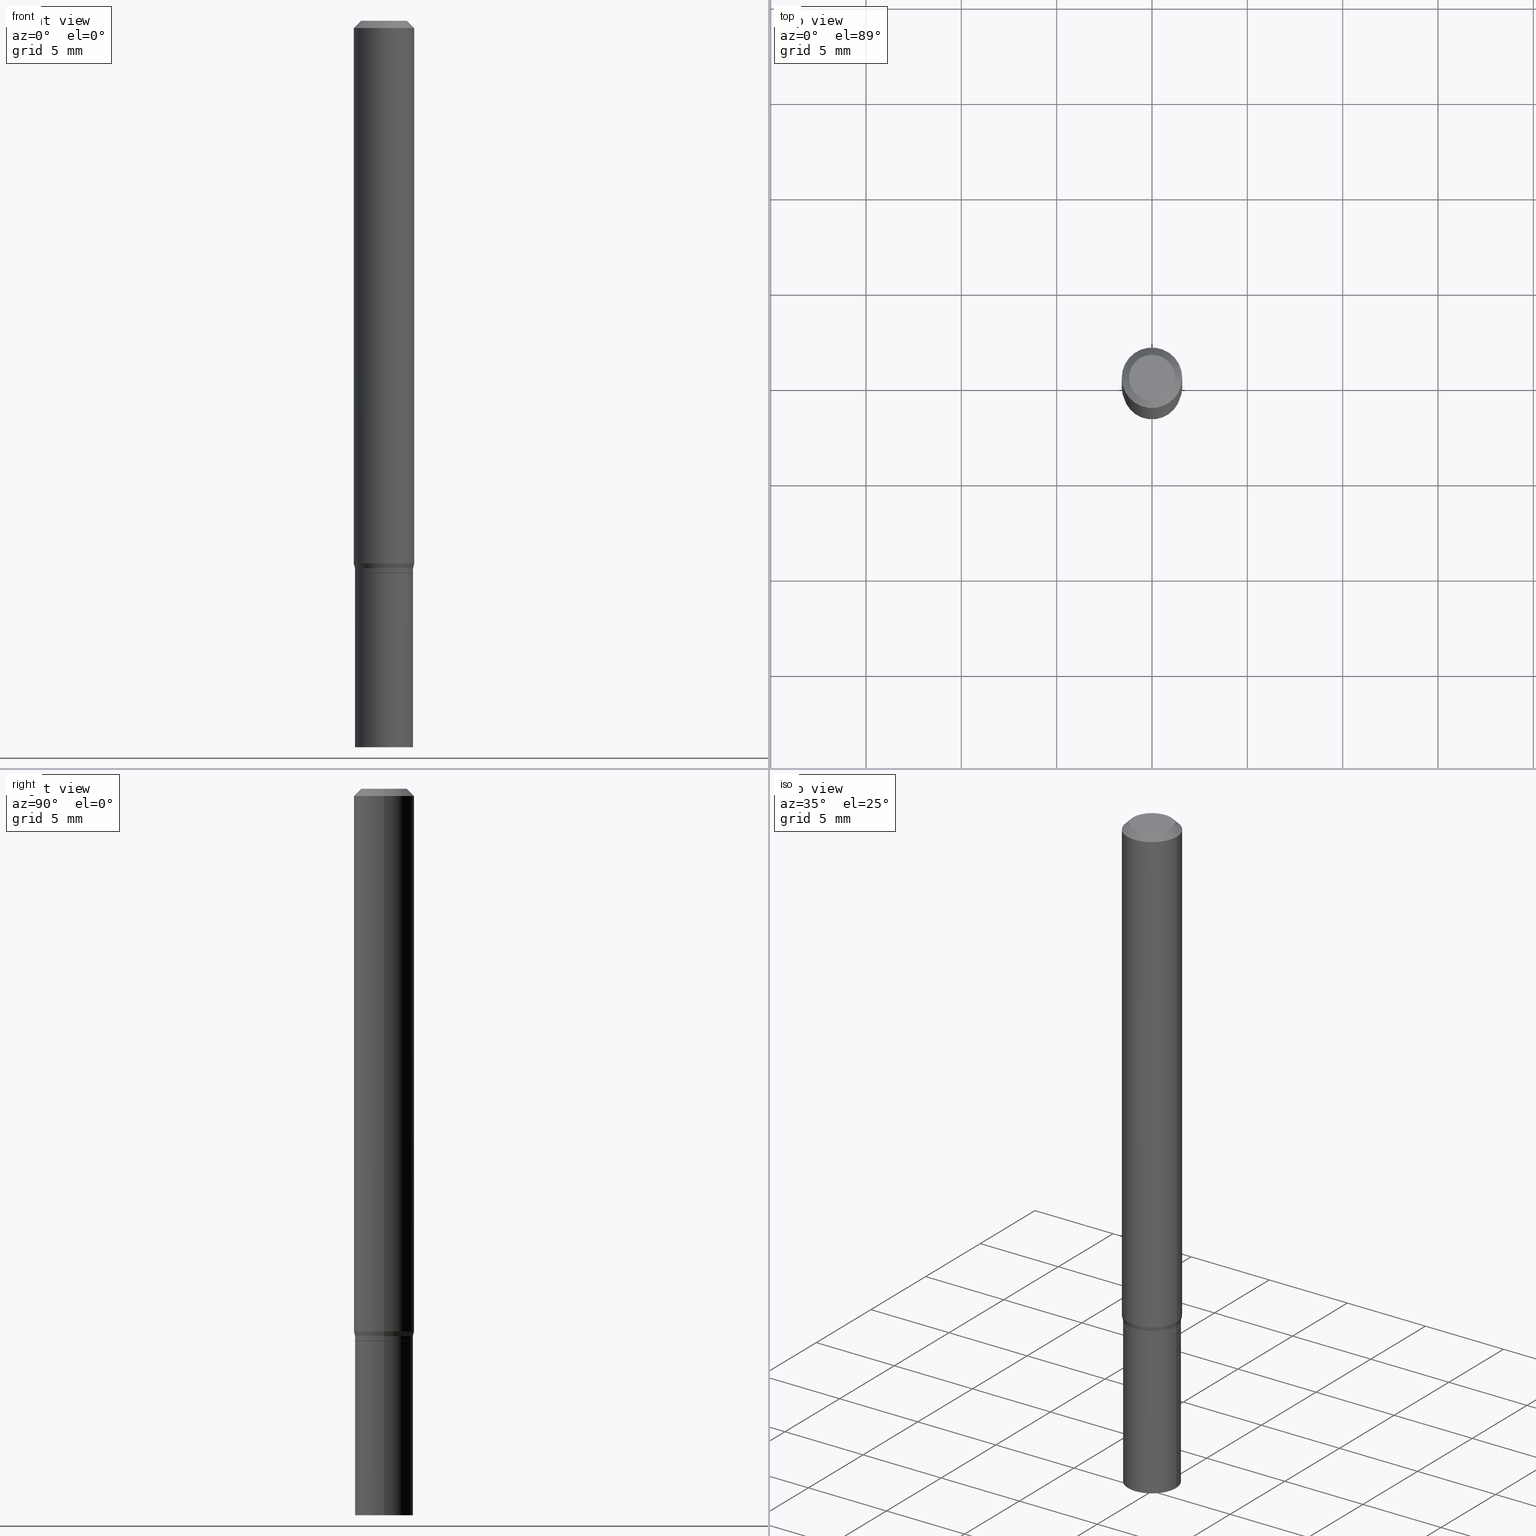
[diagram: canonical four-view strip — front | top / right | iso, engineering-drawing reading convention]
A machine part, canonical four-view strip (front | top / right | iso — engineering-drawing reading convention). The complete STEP part file that produces these views, byte-faithful:
ISO-10303-21;
HEADER;
FILE_DESCRIPTION (( 'STEP AP203' ),
    '1' );
FILE_NAME ('00583.STEP',
    '2024-03-19T21:51:03',
    ( '' ),
    ( '' ),
    'SwSTEP 2.0',
    'SolidWorks 2023',
    '' );
FILE_SCHEMA (( 'CONFIG_CONTROL_DESIGN' ));
ENDSEC;

DATA;
#1 = PLANE ( 'NONE',  #309 ) ;
#2 = PERSON_AND_ORGANIZATION ( #39, #293 ) ;
#3 = CIRCLE ( 'NONE', #179, 0.04749999999999999362 ) ;
#4 = EDGE_CURVE ( 'NONE', #184, #239, #442, .T. ) ;
#5 = FACE_OUTER_BOUND ( 'NONE', #402, .T. ) ;
#6 = EDGE_LOOP ( 'NONE', ( #204, #338, #359, #151 ) ) ;
#7 = DIRECTION ( 'NONE',  ( -2.445468806185136597E-29, 3.491481338843145583E-15, 1.000000000000000000 ) ) ;
#8 = PLANE ( 'NONE',  #301 ) ;
#9 = CLOSED_SHELL ( 'NONE', ( #53, #89, #14, #244, #54, #411, #408, #112, #95, #300, #61, #362 ) ) ;
#10 = LOCAL_TIME ( 17, 51, 3.000000000000000000, #182 ) ;
#11 = CARTESIAN_POINT ( 'NONE',  ( 2.787834439051055989E-29, -3.980288726281186698E-15, -1.140000000000000124 ) ) ;
#12 = CARTESIAN_POINT ( 'NONE',  ( -0.05999999999999999778, -4.182429725816891947E-15, -1.140000000000000124 ) ) ;
#13 = ORIENTED_EDGE ( 'NONE', *, *, #108, .F. ) ;
#14 = ADVANCED_FACE ( 'NONE', ( #240 ), #273, .T. ) ;
#15 = LINE ( 'NONE', #207, #142 ) ;
#16 = ORIENTED_EDGE ( 'NONE', *, *, #4, .T. ) ;
#17 = LENGTH_MEASURE_WITH_UNIT ( LENGTH_MEASURE( 0.02539999999999999897 ), #51 );
#18 = DIRECTION ( 'NONE',  ( 1.000000000000000000, -6.982962677686266711E-15, 0.000000000000000000 ) ) ;
#19 = ORIENTED_EDGE ( 'NONE', *, *, #390, .F. ) ;
#20 = AXIS2_PLACEMENT_3D ( 'NONE', #351, #426, #180 ) ;
#21 = DIRECTION ( 'NONE',  ( -2.445468806185136877E-29, 3.491481338843145188E-15, 1.000000000000000000 ) ) ;
#22 = VERTEX_POINT ( 'NONE', #459 ) ;
#23 = DIRECTION ( 'NONE',  ( -2.445468806185136877E-29, 3.491481338843145188E-15, 1.000000000000000000 ) ) ;
#24 = ORIENTED_EDGE ( 'NONE', *, *, #421, .T. ) ;
#25 = DIRECTION ( 'NONE',  ( -2.445468806185136597E-29, 3.491481338843145583E-15, 1.000000000000000000 ) ) ;
#26 = AXIS2_PLACEMENT_3D ( 'NONE', #64, #461, #404 ) ;
#27 = CARTESIAN_POINT ( 'NONE',  ( 0.05999999999999999778, -5.656199768925894810E-15, -1.500000000000000222 ) ) ;
#28 = EDGE_CURVE ( 'NONE', #401, #166, #288, .T. ) ;
#29 = EDGE_CURVE ( 'NONE', #85, #132, #455, .T. ) ;
#30 = DIRECTION ( 'NONE',  ( -2.445468806185136597E-29, 3.491481338843145583E-15, 1.000000000000000000 ) ) ;
#31 = DATE_AND_TIME ( #392, #330 ) ;
#32 = DIRECTION ( 'NONE',  ( -2.445468806185136597E-29, 3.491481338843145583E-15, 1.000000000000000000 ) ) ;
#33 = PERSON_AND_ORGANIZATION ( #39, #293 ) ;
#34 = CONICAL_SURFACE ( 'NONE', #355, 0.06000000000000020595, 0.2617993877991496854 ) ;
#35 = CARTESIAN_POINT ( 'NONE',  ( -0.05999999999999999778, -4.182429725816891947E-15, -1.500000000000000222 ) ) ;
#36 = CARTESIAN_POINT ( 'NONE',  ( 2.786611704647963188E-29, -3.978542985611764405E-15, -1.139500000000000179 ) ) ;
#37 = CALENDAR_DATE ( 2024, 19, 3 ) ;
#38 = UNCERTAINTY_MEASURE_WITH_UNIT (LENGTH_MEASURE( 1.000000000000000082E-05 ), #236, 'distance_accuracy_value', 'NONE');
#39 = PERSON ( 'UNSPECIFIED', 'UNSPECIFIED', 'UNSPECIFIED', ('UNSPECIFIED'), ('UNSPECIFIED'), ('UNSPECIFIED') ) ;
#40 = EDGE_CURVE ( 'NONE', #132, #184, #70, .T. ) ;
#41 = VECTOR ( 'NONE', #72, 39.37007874015748143 ) ;
#42 = DIRECTION ( 'NONE',  ( -2.445468806185136597E-29, 3.491481338843145583E-15, 1.000000000000000000 ) ) ;
#43 = CARTESIAN_POINT ( 'NONE',  ( 0.05999999999999999778, -4.189777606611760421E-16, 2.925706065477561756E-30 ) ) ;
#44 = DIRECTION ( 'NONE',  ( -2.445468806185136597E-29, 3.491481338843145583E-15, 1.000000000000000000 ) ) ;
#45 = CYLINDRICAL_SURFACE ( 'NONE', #193, 0.06250000000000000000 ) ;
#46 = EDGE_CURVE ( 'NONE', #380, #305, #126, .T. ) ;
#47 = ORIENTED_EDGE ( 'NONE', *, *, #40, .F. ) ;
#48 = CIRCLE ( 'NONE', #86, 0.04749999999999999362 ) ;
#49 = APPROVAL_PERSON_ORGANIZATION ( #33, #211, #221 ) ;
#50 = VERTEX_POINT ( 'NONE', #27 ) ;
#51 =( LENGTH_UNIT ( ) NAMED_UNIT ( * ) SI_UNIT ( $, .METRE. ) );
#52 = EDGE_LOOP ( 'NONE', ( #259, #88 ) ) ;
#53 = ADVANCED_FACE ( 'NONE', ( #276 ), #58, .T. ) ;
#54 = ADVANCED_FACE ( 'NONE', ( #242 ), #381, .T. ) ;
#55 = ORIENTED_EDGE ( 'NONE', *, *, #436, .T. ) ;
#56 = AXIS2_PLACEMENT_3D ( 'NONE', #124, #409, #376 ) ;
#57 = ORIENTED_EDGE ( 'NONE', *, *, #443, .T. ) ;
#58 = CYLINDRICAL_SURFACE ( 'NONE', #192, 0.06000000000000012962 ) ;
#59 = CARTESIAN_POINT ( 'NONE',  ( 2.787834439051055989E-29, -3.980288726281186698E-15, -1.140000000000000124 ) ) ;
#60 = EDGE_CURVE ( 'NONE', #166, #85, #386, .T. ) ;
#61 = ADVANCED_FACE ( 'NONE', ( #216 ), #292, .T. ) ;
#62 = CIRCLE ( 'NONE', #323, 0.06250000000000000000 ) ;
#63 = CIRCLE ( 'NONE', #275, 0.05999999999999999778 ) ;
#64 = CARTESIAN_POINT ( 'NONE',  ( 3.668203209277704895E-29, -5.237222008264718177E-15, -1.500000000000000222 ) ) ;
#65 = CARTESIAN_POINT ( 'NONE',  ( 2.787834439051055989E-29, -3.980288726281186698E-15, -1.140000000000000124 ) ) ;
#66 = DIRECTION ( 'NONE',  ( 0.000000000000000000, 0.000000000000000000, 1.000000000000000000 ) ) ;
#67 = PLANE ( 'NONE',  #20 ) ;
#68 = APPROVAL_DATE_TIME ( #350, #336 ) ;
#69 = CARTESIAN_POINT ( 'NONE',  ( 3.316907271900976096E-16, 0.04749999999999999362, -2.653275547260257586E-16 ) ) ;
#70 = CIRCLE ( 'NONE', #205, 0.06000000000000020595 ) ;
#71 = VECTOR ( 'NONE', #268, 39.37007874015748143 ) ;
#72 = DIRECTION ( 'NONE',  ( -2.445468806185136877E-29, 3.491481338843145188E-15, 1.000000000000000000 ) ) ;
#73 = ORIENTED_EDGE ( 'NONE', *, *, #154, .F. ) ;
#74 = APPROVAL_STATUS ( 'not_yet_approved' ) ;
#75 = MECHANICAL_CONTEXT ( 'NONE', #321, 'mechanical' ) ;
#76 = DIRECTION ( 'NONE',  ( 1.000000000000000000, -6.982962677686270655E-15, 0.000000000000000000 ) ) ;
#77 = DIRECTION ( 'NONE',  ( 1.000000000000000000, -6.982962677686265922E-15, 4.876176775795935793E-29 ) ) ;
#78 = CARTESIAN_POINT ( 'NONE',  ( 0.000000000000000000, 0.000000000000000000, 0.000000000000000000 ) ) ;
#79 = AXIS2_PLACEMENT_3D ( 'NONE', #144, #66, #137 ) ;
#80 = CARTESIAN_POINT ( 'NONE',  ( 0.000000000000000000, 0.000000000000000000, 0.000000000000000000 ) ) ;
#81 = ORIENTED_EDGE ( 'NONE', *, *, #175, .T. ) ;
#82 = ORIENTED_EDGE ( 'NONE', *, *, #154, .T. ) ;
#83 = PRODUCT_DEFINITION ( 'UNKNOWN', '', #394, #224 ) ;
#84 = VERTEX_POINT ( 'NONE', #35 ) ;
#85 = VERTEX_POINT ( 'NONE', #215 ) ;
#86 = AXIS2_PLACEMENT_3D ( 'NONE', #419, #424, #100 ) ;
#87 = AXIS2_PLACEMENT_3D ( 'NONE', #297, #445, #203 ) ;
#88 = ORIENTED_EDGE ( 'NONE', *, *, #277, .F. ) ;
#89 = ADVANCED_FACE ( 'NONE', ( #388 ), #186, .T. ) ;
#90 = ORIENTED_EDGE ( 'NONE', *, *, #46, .T. ) ;
#91 = EDGE_LOOP ( 'NONE', ( #13, #374, #24, #405 ) ) ;
#92 = AXIS2_PLACEMENT_3D ( 'NONE', #385, #32, #420 ) ;
#93 = CIRCLE ( 'NONE', #56, 0.05949999999999999734 ) ;
#94 = CARTESIAN_POINT ( 'NONE',  ( 3.668203209277705088E-31, -5.237222008264718399E-17, -0.01499999999999999944 ) ) ;
#95 = ADVANCED_FACE ( 'NONE', ( #347 ), #283, .F. ) ;
#96 = CARTESIAN_POINT ( 'NONE',  ( 0.000000000000000000, 0.000000000000000000, 0.000000000000000000 ) ) ;
#97 = CARTESIAN_POINT ( 'NONE',  ( -0.06000000000000012962, 4.263256414560610325E-16, -2.951361054152949719E-30 ) ) ;
#98 = VECTOR ( 'NONE', #143, 39.37007874015748143 ) ;
#99 = VECTOR ( 'NONE', #396, 39.37007874015748143 ) ;
#100 = DIRECTION ( 'NONE',  ( 1.000000000000000000, -6.982962677686267499E-15, 4.852736867747366768E-29 ) ) ;
#101 = DATE_AND_TIME ( #37, #265 ) ;
#102 = EDGE_CURVE ( 'NONE', #264, #239, #62, .T. ) ;
#103 = CARTESIAN_POINT ( 'NONE',  ( 0.06250000000000000000, -4.811533449433679005E-16, -0.01499999999999999944 ) ) ;
#104 = PERSON_AND_ORGANIZATION ( #39, #293 ) ;
#105 = LINE ( 'NONE', #43, #41 ) ;
#106 = CARTESIAN_POINT ( 'NONE',  ( -0.06000000000000020595, -3.519048271436693375E-15, -1.130000000000000115 ) ) ;
#107 = VECTOR ( 'NONE', #311, 39.37007874015748143 ) ;
#108 = EDGE_CURVE ( 'NONE', #163, #380, #139, .T. ) ;
#109 = VECTOR ( 'NONE', #441, 39.37007874015748143 ) ;
#110 = EDGE_LOOP ( 'NONE', ( #208, #333, #90, #290 ) ) ;
#111 = COORDINATED_UNIVERSAL_TIME_OFFSET ( 5, 0, .BEHIND. ) ;
#112 = ADVANCED_FACE ( 'NONE', ( #313 ), #307, .T. ) ;
#113 = EDGE_CURVE ( 'NONE', #398, #163, #48, .T. ) ;
#114 = ORIENTED_EDGE ( 'NONE', *, *, #40, .T. ) ;
#115 = FACE_OUTER_BOUND ( 'NONE', #52, .T. ) ;
#116 = ORIENTED_EDGE ( 'NONE', *, *, #4, .F. ) ;
#117 = CARTESIAN_POINT ( 'NONE',  ( 0.000000000000000000, 0.000000000000000000, 0.000000000000000000 ) ) ;
#118 = AXIS2_PLACEMENT_3D ( 'NONE', #331, #44, #291 ) ;
#119 = ORIENTED_EDGE ( 'NONE', *, *, #149, .F. ) ;
#120 = CARTESIAN_POINT ( 'NONE',  ( -0.06250000000000000000, -1.538495874449838155E-15, -0.01499999999999999944 ) ) ;
#121 = CARTESIAN_POINT ( 'NONE',  ( 3.668203209277705088E-31, -5.237222008264718399E-17, -0.01499999999999999944 ) ) ;
#122 = EDGE_LOOP ( 'NONE', ( #228, #371, #82, #302 ) ) ;
#123 = CC_DESIGN_PERSON_AND_ORGANIZATION_ASSIGNMENT ( #2, #433, ( #366 ) ) ;
#124 = CARTESIAN_POINT ( 'NONE',  ( 2.787834439051055989E-29, -3.980288726281186698E-15, -1.140000000000000124 ) ) ;
#125 = EDGE_LOOP ( 'NONE', ( #410, #295, #220, #287 ) ) ;
#126 = CIRCLE ( 'NONE', #462, 0.06250000000000000000 ) ;
#127 = APPROVAL_PERSON_ORGANIZATION ( #141, #336, #423 ) ;
#128 = DIRECTION ( 'NONE',  ( -2.445468806185136597E-29, 3.491481338843145583E-15, 1.000000000000000000 ) ) ;
#129 = ORIENTED_EDGE ( 'NONE', *, *, #28, .F. ) ;
#130 = APPLICATION_PROTOCOL_DEFINITION ( 'international standard', 'config_control_design', 1994, #321 ) ;
#131 = ORIENTED_EDGE ( 'NONE', *, *, #390, .T. ) ;
#132 = VERTEX_POINT ( 'NONE', #247 ) ;
#133 = MANIFOLD_SOLID_BREP ( 'Body-Move/Copy2[1]', #155 ) ;
#134 = CIRCLE ( 'NONE', #26, 0.05999999999999999778 ) ;
#135 = DIRECTION ( 'NONE',  ( -2.445468806185136597E-29, 3.491481338843145583E-15, 1.000000000000000000 ) ) ;
#136 = CARTESIAN_POINT ( 'NONE',  ( 2.763379750989204444E-29, -3.945373912892755049E-15, -1.130000000000000115 ) ) ;
#137 = DIRECTION ( 'NONE',  ( 1.000000000000000000, 0.000000000000000000, 0.000000000000000000 ) ) ;
#138 = ADVANCED_FACE ( 'NONE', ( #391 ), #67, .F. ) ;
#139 = LINE ( 'NONE', #103, #98 ) ;
#140 = EDGE_CURVE ( 'NONE', #50, #84, #346, .T. ) ;
#141 = PERSON_AND_ORGANIZATION ( #39, #293 ) ;
#142 = VECTOR ( 'NONE', #23, 39.37007874015748143 ) ;
#143 = DIRECTION ( 'NONE',  ( 0.7071067811865522357, -7.319954787623271823E-15, -0.7071067811865427988 ) ) ;
#144 = CARTESIAN_POINT ( 'NONE',  ( 0.000000000000000000, 0.000000000000000000, 0.000000000000000000 ) ) ;
#145 = DIRECTION ( 'NONE',  ( -2.445468806185136597E-29, 3.491481338843145583E-15, 1.000000000000000000 ) ) ;
#146 = LINE ( 'NONE', #106, #348 ) ;
#147 = SECURITY_CLASSIFICATION_LEVEL ( 'unclassified' ) ;
#148 = APPLICATION_PROTOCOL_DEFINITION ( 'international standard', 'config_control_design', 1994, #174 ) ;
#149 = EDGE_CURVE ( 'NONE', #85, #22, #447, .T. ) ;
#150 = LINE ( 'NONE', #327, #99 ) ;
#151 = ORIENTED_EDGE ( 'NONE', *, *, #436, .F. ) ;
#152 = CARTESIAN_POINT ( 'NONE',  ( 0.05949999999999999734, -4.395775005603518747E-15, -1.140000000000000124 ) ) ;
#153 = ORIENTED_EDGE ( 'NONE', *, *, #149, .T. ) ;
#154 = EDGE_CURVE ( 'NONE', #50, #449, #105, .T. ) ;
#155 = CLOSED_SHELL ( 'NONE', ( #395, #185, #199, #138 ) ) ;
#156 = CIRCLE ( 'NONE', #418, 0.06000000000000020595 ) ;
#157 = FACE_OUTER_BOUND ( 'NONE', #372, .T. ) ;
#158 = DIRECTION ( 'NONE',  ( 1.000000000000000000, -6.982962677686266711E-15, 4.876176775795935793E-29 ) ) ;
#159 = EDGE_LOOP ( 'NONE', ( #257, #167, #451, #446 ) ) ;
#160 = EDGE_CURVE ( 'NONE', #231, #449, #299, .T. ) ;
#161 = CARTESIAN_POINT ( 'NONE',  ( -0.06250000000000000000, 3.840629472727444916E-16, -0.01499999999999999944 ) ) ;
#162 = CARTESIAN_POINT ( 'NONE',  ( 0.06250000000000000000, -4.349233115872546527E-15, -1.120669872981078674 ) ) ;
#163 = VERTEX_POINT ( 'NONE', #322 ) ;
#164 = EDGE_CURVE ( 'NONE', #22, #85, #260, .T. ) ;
#165 = CARTESIAN_POINT ( 'NONE',  ( 2.763379750989204444E-29, -3.945373912892755049E-15, -1.130000000000000115 ) ) ;
#166 = VERTEX_POINT ( 'NONE', #252 ) ;
#167 = ORIENTED_EDGE ( 'NONE', *, *, #60, .T. ) ;
#168 = DIRECTION ( 'NONE',  ( 1.000000000000000000, -6.982962677686269077E-15, 0.000000000000000000 ) ) ;
#169 = EDGE_LOOP ( 'NONE', ( #131, #415 ) ) ;
#170 = CARTESIAN_POINT ( 'NONE',  ( 3.668203209277705088E-31, -5.237222008264718399E-17, -0.01499999999999999944 ) ) ;
#171 = VECTOR ( 'NONE', #272, 39.37007874015748143 ) ;
#172 = AXIS2_PLACEMENT_3D ( 'NONE', #121, #197, #18 ) ;
#173 = DIRECTION ( 'NONE',  ( 1.000000000000000000, -6.982962677686265922E-15, 4.876176775795935793E-29 ) ) ;
#174 = APPLICATION_CONTEXT ( 'configuration controlled 3d designs of mechanical parts and assemblies' ) ;
#175 = EDGE_CURVE ( 'NONE', #132, #264, #146, .T. ) ;
#176 = DIRECTION ( 'NONE',  ( 1.000000000000000000, -6.982962677686270655E-15, 0.000000000000000000 ) ) ;
#177 = APPROVAL_DATE_TIME ( #352, #218 ) ;
#178 = CARTESIAN_POINT ( 'NONE',  ( 2.763379750989204444E-29, -3.945373912892755049E-15, -1.130000000000000115 ) ) ;
#179 = AXIS2_PLACEMENT_3D ( 'NONE', #271, #448, #202 ) ;
#180 = DIRECTION ( 'NONE',  ( -1.000000000000000000, 6.982962677686265922E-15, -4.876176775795935793E-29 ) ) ;
#181 = ADVANCED_BREP_SHAPE_REPRESENTATION ( '00583', ( #133, #456, #79 ), #282 ) ;
#182 = COORDINATED_UNIVERSAL_TIME_OFFSET ( 5, 0, .BEHIND. ) ;
#183 = DIRECTION ( 'NONE',  ( -0.2588190451025210170, 5.211531920934547886E-15, 0.9659258262890682012 ) ) ;
#184 = VERTEX_POINT ( 'NONE', #435 ) ;
#185 = ADVANCED_FACE ( 'NONE', ( #115 ), #1, .F. ) ;
#186 = CONICAL_SURFACE ( 'NONE', #225, 0.05949999999999999734, 0.7853981633974739252 ) ;
#187 = CC_DESIGN_APPROVAL ( #336, ( #366 ) ) ;
#188 = DIRECTION ( 'NONE',  ( -2.445468806185136597E-29, 3.491481338843145583E-15, 1.000000000000000000 ) ) ;
#189 = CARTESIAN_POINT ( 'NONE',  ( -0.04749999999999999362, 3.578768372314206562E-16, -1.989643822619551895E-16 ) ) ;
#190 = ORIENTED_EDGE ( 'NONE', *, *, #325, .T. ) ;
#191 = FACE_OUTER_BOUND ( 'NONE', #357, .T. ) ;
#192 = AXIS2_PLACEMENT_3D ( 'NONE', #96, #209, #173 ) ;
#193 = AXIS2_PLACEMENT_3D ( 'NONE', #117, #194, #158 ) ;
#194 = DIRECTION ( 'NONE',  ( -2.445468806185136597E-29, 3.491481338843145583E-15, 1.000000000000000000 ) ) ;
#195 = ORIENTED_EDGE ( 'NONE', *, *, #279, .T. ) ;
#196 = CARTESIAN_POINT ( 'NONE',  ( 2.787834439051055989E-29, -3.980288726281186698E-15, -1.140000000000000124 ) ) ;
#197 = DIRECTION ( 'NONE',  ( -2.445468806185136597E-29, 3.491481338843145583E-15, 1.000000000000000000 ) ) ;
#198 = ORIENTED_EDGE ( 'NONE', *, *, #102, .T. ) ;
#199 = ADVANCED_FACE ( 'NONE', ( #364 ), #397, .T. ) ;
#200 = DIRECTION ( 'NONE',  ( -0.7071067811865522357, 2.468850131082306364E-15, -0.7071067811865427988 ) ) ;
#201 = ORIENTED_EDGE ( 'NONE', *, *, #29, .F. ) ;
#202 = DIRECTION ( 'NONE',  ( 1.000000000000000000, -6.982962677686267499E-15, 4.852736867747366768E-29 ) ) ;
#203 = DIRECTION ( 'NONE',  ( 1.000000000000000000, -6.982962677686266711E-15, 4.876176775795935793E-29 ) ) ;
#204 = ORIENTED_EDGE ( 'NONE', *, *, #164, .T. ) ;
#205 = AXIS2_PLACEMENT_3D ( 'NONE', #178, #315, #278 ) ;
#206 = CC_DESIGN_SECURITY_CLASSIFICATION ( #366, ( #394 ) ) ;
#207 = CARTESIAN_POINT ( 'NONE',  ( 0.06000000000000012962, -4.189777606611768802E-16, 2.925706065477567711E-30 ) ) ;
#208 = ORIENTED_EDGE ( 'NONE', *, *, #429, .F. ) ;
#209 = DIRECTION ( 'NONE',  ( -2.445468806185136597E-29, 3.491481338843145583E-15, 1.000000000000000000 ) ) ;
#210 = DIRECTION ( 'NONE',  ( 1.000000000000000000, -6.982962677686259611E-15, 0.000000000000000000 ) ) ;
#211 = APPROVAL ( #464, 'UNSPECIFIED' ) ;
#212 = AXIS2_PLACEMENT_3D ( 'NONE', #261, #7, #76 ) ;
#213 = DIRECTION ( 'NONE',  ( 2.438088387897960049E-29, -3.491481338843145188E-15, -1.000000000000000000 ) ) ;
#214 = PERSON_AND_ORGANIZATION ( #39, #293 ) ;
#215 = CARTESIAN_POINT ( 'NONE',  ( -0.06000000000000006023, -3.552217344155704310E-15, -1.139500000000000179 ) ) ;
#216 = FACE_OUTER_BOUND ( 'NONE', #329, .T. ) ;
#217 = APPROVAL_PERSON_ORGANIZATION ( #214, #218, #316 ) ;
#218 = APPROVAL ( #281, 'UNSPECIFIED' ) ;
#219 = DIRECTION ( 'NONE',  ( 1.000000000000000000, -6.982962677686268288E-15, 0.000000000000000000 ) ) ;
#220 = ORIENTED_EDGE ( 'NONE', *, *, #46, .F. ) ;
#221 = APPROVAL_ROLE ( '' ) ;
#222 = SHAPE_DEFINITION_REPRESENTATION ( #378, #181 ) ;
#223 = PRODUCT_RELATED_PRODUCT_CATEGORY ( 'detail', '', ( #235 ) ) ;
#224 = DESIGN_CONTEXT ( 'detailed design', #174, 'design' ) ;
#225 = AXIS2_PLACEMENT_3D ( 'NONE', #65, #25, #241 ) ;
#226 = CIRCLE ( 'NONE', #172, 0.06250000000000000000 ) ;
#227 = DIRECTION ( 'NONE',  ( 1.000000000000000000, -6.982962677686265922E-15, 4.876176775795935793E-29 ) ) ;
#228 = ORIENTED_EDGE ( 'NONE', *, *, #325, .F. ) ;
#229 = DIRECTION ( 'NONE',  ( 1.000000000000000000, -6.982962677686265922E-15, 4.876176775795935793E-29 ) ) ;
#230 = DIRECTION ( 'NONE',  ( 1.000000000000000000, -6.982962677686267499E-15, 4.876176775795936353E-29 ) ) ;
#231 = VERTEX_POINT ( 'NONE', #12 ) ;
#232 = VECTOR ( 'NONE', #21, 39.37007874015748143 ) ;
#233 = EDGE_CURVE ( 'NONE', #305, #380, #226, .T. ) ;
#234 = ORIENTED_EDGE ( 'NONE', *, *, #102, .F. ) ;
#235 = PRODUCT ( '00583', '00583', '', ( #75 ) ) ;
#236 =( CONVERSION_BASED_UNIT ( 'INCH', #17 ) LENGTH_UNIT ( ) NAMED_UNIT ( #444 ) );
#237 = EDGE_LOOP ( 'NONE', ( #384, #81, #262, #116 ) ) ;
#238 = LINE ( 'NONE', #341, #232 ) ;
#239 = VERTEX_POINT ( 'NONE', #162 ) ;
#240 = FACE_OUTER_BOUND ( 'NONE', #110, .T. ) ;
#241 = DIRECTION ( 'NONE',  ( 1.000000000000000000, -6.982962677686259611E-15, 0.000000000000000000 ) ) ;
#242 = FACE_OUTER_BOUND ( 'NONE', #237, .T. ) ;
#243 = DIRECTION ( 'NONE',  ( 1.000000000000000000, -6.982962677686268288E-15, 0.000000000000000000 ) ) ;
#244 = ADVANCED_FACE ( 'NONE', ( #304 ), #414, .T. ) ;
#245 = AXIS2_PLACEMENT_3D ( 'NONE', #368, #403, #168 ) ;
#246 = CALENDAR_DATE ( 2024, 19, 3 ) ;
#247 = CARTESIAN_POINT ( 'NONE',  ( -0.06000000000000020595, -3.493878505051892611E-15, -1.130000000000000115 ) ) ;
#248 = DATE_TIME_ROLE ( 'classification_date' ) ;
#249 = DIRECTION ( 'NONE',  ( -2.445468806185136877E-29, 3.491481338843145188E-15, 1.000000000000000000 ) ) ;
#250 = COORDINATED_UNIVERSAL_TIME_OFFSET ( 5, 0, .BEHIND. ) ;
#251 = AXIS2_PLACEMENT_3D ( 'NONE', #78, #370, #229 ) ;
#252 = CARTESIAN_POINT ( 'NONE',  ( -0.05949999999999999734, -3.554866571329815905E-15, -1.140000000000000124 ) ) ;
#253 = ORIENTED_EDGE ( 'NONE', *, *, #233, .F. ) ;
#254 = APPROVAL_DATE_TIME ( #101, #211 ) ;
#255 = EDGE_CURVE ( 'NONE', #166, #401, #93, .T. ) ;
#256 = CARTESIAN_POINT ( 'NONE',  ( 3.576687321579069994E-29, -5.368277968210015545E-15, -1.500000000000000222 ) ) ;
#257 = ORIENTED_EDGE ( 'NONE', *, *, #28, .T. ) ;
#258 = CYLINDRICAL_SURFACE ( 'NONE', #251, 0.06000000000000012962 ) ;
#259 = ORIENTED_EDGE ( 'NONE', *, *, #140, .F. ) ;
#260 = CIRCLE ( 'NONE', #317, 0.06000000000000006023 ) ;
#261 = CARTESIAN_POINT ( 'NONE',  ( 2.740563216406686834E-29, -3.912797948517154069E-15, -1.120669872981078674 ) ) ;
#262 = ORIENTED_EDGE ( 'NONE', *, *, #361, .F. ) ;
#263 = CC_DESIGN_DATE_AND_TIME_ASSIGNMENT ( #31, #314, ( #83 ) ) ;
#264 = VERTEX_POINT ( 'NONE', #412 ) ;
#265 = LOCAL_TIME ( 17, 51, 3.000000000000000000, #427 ) ;
#266 = CARTESIAN_POINT ( 'NONE',  ( 0.06250000000000000000, -4.364351673553916694E-16, 3.047610484872459871E-30 ) ) ;
#267 = ORIENTED_EDGE ( 'NONE', *, *, #429, .T. ) ;
#268 = DIRECTION ( 'NONE',  ( -2.445468806185136877E-29, 3.491481338843145188E-15, 1.000000000000000000 ) ) ;
#269 = ORIENTED_EDGE ( 'NONE', *, *, #270, .F. ) ;
#270 = EDGE_CURVE ( 'NONE', #264, #305, #238, .T. ) ;
#271 = CARTESIAN_POINT ( 'NONE',  ( 4.865611903635008365E-45, -6.946804277620623666E-31, -1.989643822619527736E-16 ) ) ;
#272 = DIRECTION ( 'NONE',  ( 0.2588190451025210170, 1.565188264969624531E-15, 0.9659258262890682012 ) ) ;
#273 = CONICAL_SURFACE ( 'NONE', #365, 0.06250000000000000000, 0.7853981633974549403 ) ;
#274 = DIRECTION ( 'NONE',  ( -1.000000000000000000, 6.982962677686266711E-15, 0.000000000000000000 ) ) ;
#275 = AXIS2_PLACEMENT_3D ( 'NONE', #11, #188, #326 ) ;
#276 = FACE_OUTER_BOUND ( 'NONE', #6, .T. ) ;
#277 = EDGE_CURVE ( 'NONE', #84, #50, #134, .T. ) ;
#278 = DIRECTION ( 'NONE',  ( 1.000000000000000000, -6.982962677686268288E-15, 0.000000000000000000 ) ) ;
#279 = EDGE_CURVE ( 'NONE', #401, #22, #373, .T. ) ;
#280 = CARTESIAN_POINT ( 'NONE',  ( 3.668203209277705088E-31, -5.237222008264718399E-17, -0.01499999999999999944 ) ) ;
#281 = APPROVAL_STATUS ( 'not_yet_approved' ) ;
#282 =( GEOMETRIC_REPRESENTATION_CONTEXT ( 3 ) GLOBAL_UNCERTAINTY_ASSIGNED_CONTEXT ( ( #38 ) ) GLOBAL_UNIT_ASSIGNED_CONTEXT ( ( #236, #375, #379 ) ) REPRESENTATION_CONTEXT ( 'NONE', 'WORKASPACE' ) );
#283 = PLANE ( 'NONE',  #417 ) ;
#284 = PERSON_AND_ORGANIZATION ( #39, #293 ) ;
#285 = PERSON_AND_ORGANIZATION_ROLE ( 'design_owner' ) ;
#286 = DIRECTION ( 'NONE',  ( -2.438088387897960049E-29, 3.491481338843145188E-15, 1.000000000000000000 ) ) ;
#287 = ORIENTED_EDGE ( 'NONE', *, *, #443, .F. ) ;
#288 = CIRCLE ( 'NONE', #92, 0.05949999999999999734 ) ;
#289 = CC_DESIGN_PERSON_AND_ORGANIZATION_ASSIGNMENT ( #356, #285, ( #235 ) ) ;
#290 = ORIENTED_EDGE ( 'NONE', *, *, #421, .F. ) ;
#291 = DIRECTION ( 'NONE',  ( 1.000000000000000000, -6.982962677686267499E-15, 4.876176775795936353E-29 ) ) ;
#292 = CONICAL_SURFACE ( 'NONE', #440, 0.05949999999999999734, 0.7853981633974739252 ) ;
#293 = ORGANIZATION ( 'UNSPECIFIED', 'UNSPECIFIED', '' ) ;
#294 = CARTESIAN_POINT ( 'NONE',  ( 0.05949999999999999734, -4.395775005603518747E-15, -1.140000000000000124 ) ) ;
#295 = ORIENTED_EDGE ( 'NONE', *, *, #270, .T. ) ;
#296 = CARTESIAN_POINT ( 'NONE',  ( 2.763379750989204444E-29, -3.945373912892755049E-15, -1.130000000000000115 ) ) ;
#297 = CARTESIAN_POINT ( 'NONE',  ( 0.000000000000000000, 0.000000000000000000, 0.000000000000000000 ) ) ;
#298 = EDGE_LOOP ( 'NONE', ( #269, #198, #57, #253 ) ) ;
#299 = CIRCLE ( 'NONE', #382, 0.05999999999999999778 ) ;
#300 = ADVANCED_FACE ( 'NONE', ( #191 ), #8, .F. ) ;
#301 = AXIS2_PLACEMENT_3D ( 'NONE', #196, #434, #227 ) ;
#302 = ORIENTED_EDGE ( 'NONE', *, *, #160, .F. ) ;
#303 = LINE ( 'NONE', #161, #406 ) ;
#304 = FACE_OUTER_BOUND ( 'NONE', #125, .T. ) ;
#305 = VERTEX_POINT ( 'NONE', #120 ) ;
#306 = EDGE_LOOP ( 'NONE', ( #437, #267 ) ) ;
#307 = CONICAL_SURFACE ( 'NONE', #430, 0.06250000000000000000, 0.7853981633974549403 ) ;
#308 = DIRECTION ( 'NONE',  ( -1.000000000000000000, 6.982962677686265922E-15, -4.876176775795935793E-29 ) ) ;
#309 = AXIS2_PLACEMENT_3D ( 'NONE', #256, #286, #77 ) ;
#310 = CC_DESIGN_PERSON_AND_ORGANIZATION_ASSIGNMENT ( #358, #320, ( #394 ) ) ;
#311 = DIRECTION ( 'NONE',  ( -0.7071067811865656694, 7.493145998870420424E-15, 0.7071067811865294761 ) ) ;
#312 = PERSON_AND_ORGANIZATION_ROLE ( 'creator' ) ;
#313 = FACE_OUTER_BOUND ( 'NONE', #91, .T. ) ;
#314 = DATE_TIME_ROLE ( 'creation_date' ) ;
#315 = DIRECTION ( 'NONE',  ( -2.445468806185136597E-29, 3.491481338843145583E-15, 1.000000000000000000 ) ) ;
#316 = APPROVAL_ROLE ( '' ) ;
#317 = AXIS2_PLACEMENT_3D ( 'NONE', #36, #42, #466 ) ;
#318 = CARTESIAN_POINT ( 'NONE',  ( 3.668203209277704895E-29, -5.237222008264718177E-15, -1.500000000000000222 ) ) ;
#319 = DATE_AND_TIME ( #246, #324 ) ;
#320 = PERSON_AND_ORGANIZATION_ROLE ( 'design_supplier' ) ;
#321 = APPLICATION_CONTEXT ( 'configuration controlled 3d designs of mechanical parts and assemblies' ) ;
#322 = CARTESIAN_POINT ( 'NONE',  ( 0.04749999999999999362, -4.035134999187581581E-16, -1.989643822619502098E-16 ) ) ;
#323 = AXIS2_PLACEMENT_3D ( 'NONE', #349, #30, #176 ) ;
#324 = LOCAL_TIME ( 17, 51, 3.000000000000000000, #250 ) ;
#325 = EDGE_CURVE ( 'NONE', #84, #231, #150, .T. ) ;
#326 = DIRECTION ( 'NONE',  ( 1.000000000000000000, -6.982962677686268288E-15, 0.000000000000000000 ) ) ;
#327 = CARTESIAN_POINT ( 'NONE',  ( -0.05999999999999999778, 4.263256414560600957E-16, -2.951361054152943413E-30 ) ) ;
#328 = DIRECTION ( 'NONE',  ( -2.445468806185136597E-29, 3.491481338843145583E-15, 1.000000000000000000 ) ) ;
#329 = EDGE_LOOP ( 'NONE', ( #342, #413, #195, #119 ) ) ;
#330 = LOCAL_TIME ( 17, 51, 3.000000000000000000, #425 ) ;
#331 = CARTESIAN_POINT ( 'NONE',  ( 0.000000000000000000, 0.000000000000000000, 0.000000000000000000 ) ) ;
#332 = DIRECTION ( 'NONE',  ( -2.445468806185136597E-29, 3.491481338843145583E-15, 1.000000000000000000 ) ) ;
#333 = ORIENTED_EDGE ( 'NONE', *, *, #108, .T. ) ;
#334 = DIRECTION ( 'NONE',  ( -2.445468806185136597E-29, 3.491481338843145583E-15, 1.000000000000000000 ) ) ;
#335 = ORIENTED_EDGE ( 'NONE', *, *, #140, .T. ) ;
#336 = APPROVAL ( #74, 'UNSPECIFIED' ) ;
#337 = FACE_OUTER_BOUND ( 'NONE', #377, .T. ) ;
#338 = ORIENTED_EDGE ( 'NONE', *, *, #29, .T. ) ;
#339 = CC_DESIGN_APPROVAL ( #218, ( #83 ) ) ;
#340 = LINE ( 'NONE', #266, #71 ) ;
#341 = CARTESIAN_POINT ( 'NONE',  ( -0.06250000000000000000, 4.440892098500626162E-16, -3.074334431409316114E-30 ) ) ;
#342 = ORIENTED_EDGE ( 'NONE', *, *, #60, .F. ) ;
#343 = ORIENTED_EDGE ( 'NONE', *, *, #175, .F. ) ;
#344 = DIRECTION ( 'NONE',  ( -2.445468806185136597E-29, 3.491481338843145583E-15, 1.000000000000000000 ) ) ;
#345 = CC_DESIGN_PERSON_AND_ORGANIZATION_ASSIGNMENT ( #104, #460, ( #394 ) ) ;
#346 = CIRCLE ( 'NONE', #387, 0.05999999999999999778 ) ;
#347 = FACE_OUTER_BOUND ( 'NONE', #306, .T. ) ;
#348 = VECTOR ( 'NONE', #183, 39.37007874015748143 ) ;
#349 = CARTESIAN_POINT ( 'NONE',  ( 2.740563216406686834E-29, -3.912797948517154069E-15, -1.120669872981078674 ) ) ;
#350 = DATE_AND_TIME ( #458, #389 ) ;
#351 = CARTESIAN_POINT ( 'NONE',  ( 4.189777606612038494E-16, 0.05999999999999602179, -1.140000000000000346 ) ) ;
#352 = DATE_AND_TIME ( #360, #10 ) ;
#353 = DIRECTION ( 'NONE',  ( 2.445468806185136597E-29, -3.491481338843145583E-15, -1.000000000000000000 ) ) ;
#354 = VECTOR ( 'NONE', #249, 39.37007874015748143 ) ;
#355 = AXIS2_PLACEMENT_3D ( 'NONE', #165, #334, #407 ) ;
#356 = PERSON_AND_ORGANIZATION ( #39, #293 ) ;
#357 = EDGE_LOOP ( 'NONE', ( #129, #432 ) ) ;
#358 = PERSON_AND_ORGANIZATION ( #39, #293 ) ;
#359 = ORIENTED_EDGE ( 'NONE', *, *, #438, .F. ) ;
#360 = CALENDAR_DATE ( 2024, 19, 3 ) ;
#361 = EDGE_CURVE ( 'NONE', #239, #264, #431, .T. ) ;
#362 = ADVANCED_FACE ( 'NONE', ( #157 ), #258, .T. ) ;
#363 = CARTESIAN_POINT ( 'NONE',  ( 0.06250000000000000000, -4.888073874380388472E-16, -0.01499999999999999944 ) ) ;
#364 = FACE_OUTER_BOUND ( 'NONE', #122, .T. ) ;
#365 = AXIS2_PLACEMENT_3D ( 'NONE', #94, #457, #274 ) ;
#366 = SECURITY_CLASSIFICATION ( '', '', #147 ) ;
#367 = CYLINDRICAL_SURFACE ( 'NONE', #118, 0.05999999999999999778 ) ;
#368 = CARTESIAN_POINT ( 'NONE',  ( 2.786611704647963188E-29, -3.978542985611764405E-15, -1.139500000000000179 ) ) ;
#369 = CC_DESIGN_PERSON_AND_ORGANIZATION_ASSIGNMENT ( #284, #312, ( #83 ) ) ;
#370 = DIRECTION ( 'NONE',  ( -2.445468806185136597E-29, 3.491481338843145583E-15, 1.000000000000000000 ) ) ;
#371 = ORIENTED_EDGE ( 'NONE', *, *, #277, .T. ) ;
#372 = EDGE_LOOP ( 'NONE', ( #201, #153, #55, #47 ) ) ;
#373 = LINE ( 'NONE', #152, #109 ) ;
#374 = ORIENTED_EDGE ( 'NONE', *, *, #113, .F. ) ;
#375 =( NAMED_UNIT ( * ) PLANE_ANGLE_UNIT ( ) SI_UNIT ( $, .RADIAN. ) );
#376 = DIRECTION ( 'NONE',  ( 1.000000000000000000, -6.982962677686259611E-15, 0.000000000000000000 ) ) ;
#377 = EDGE_LOOP ( 'NONE', ( #343, #114, #16, #234 ) ) ;
#378 = PRODUCT_DEFINITION_SHAPE ( 'NONE', 'NONE',  #83 ) ;
#379 =( NAMED_UNIT ( * ) SI_UNIT ( $, .STERADIAN. ) SOLID_ANGLE_UNIT ( ) );
#380 = VERTEX_POINT ( 'NONE', #363 ) ;
#381 = CONICAL_SURFACE ( 'NONE', #453, 0.06000000000000020595, 0.2617993877991496854 ) ;
#382 = AXIS2_PLACEMENT_3D ( 'NONE', #428, #328, #219 ) ;
#383 = DIRECTION ( 'NONE',  ( 1.000000000000000000, -6.982962677686268288E-15, 0.000000000000000000 ) ) ;
#384 = ORIENTED_EDGE ( 'NONE', *, *, #438, .T. ) ;
#385 = CARTESIAN_POINT ( 'NONE',  ( 2.787834439051055989E-29, -3.980288726281186698E-15, -1.140000000000000124 ) ) ;
#386 = LINE ( 'NONE', #393, #107 ) ;
#387 = AXIS2_PLACEMENT_3D ( 'NONE', #318, #145, #400 ) ;
#388 = FACE_OUTER_BOUND ( 'NONE', #159, .T. ) ;
#389 = LOCAL_TIME ( 17, 51, 3.000000000000000000, #111 ) ;
#390 = EDGE_CURVE ( 'NONE', #449, #231, #63, .T. ) ;
#391 = FACE_OUTER_BOUND ( 'NONE', #169, .T. ) ;
#392 = CALENDAR_DATE ( 2024, 19, 3 ) ;
#393 = CARTESIAN_POINT ( 'NONE',  ( -0.05949999999999999734, -3.557515798503927106E-15, -1.140000000000000124 ) ) ;
#394 = PRODUCT_DEFINITION_FORMATION_WITH_SPECIFIED_SOURCE ( 'ANY', '', #235, .NOT_KNOWN. ) ;
#395 = ADVANCED_FACE ( 'NONE', ( #5 ), #367, .T. ) ;
#396 = DIRECTION ( 'NONE',  ( -2.445468806185136877E-29, 3.491481338843145188E-15, 1.000000000000000000 ) ) ;
#397 = CYLINDRICAL_SURFACE ( 'NONE', #454, 0.05999999999999999778 ) ;
#398 = VERTEX_POINT ( 'NONE', #189 ) ;
#399 = CC_DESIGN_APPROVAL ( #211, ( #394 ) ) ;
#400 = DIRECTION ( 'NONE',  ( 1.000000000000000000, -6.982962677686268288E-15, 0.000000000000000000 ) ) ;
#401 = VERTEX_POINT ( 'NONE', #294 ) ;
#402 = EDGE_LOOP ( 'NONE', ( #335, #190, #19, #73 ) ) ;
#403 = DIRECTION ( 'NONE',  ( -2.445468806185136597E-29, 3.491481338843145583E-15, 1.000000000000000000 ) ) ;
#404 = DIRECTION ( 'NONE',  ( 1.000000000000000000, -6.982962677686268288E-15, 0.000000000000000000 ) ) ;
#405 = ORIENTED_EDGE ( 'NONE', *, *, #233, .T. ) ;
#406 = VECTOR ( 'NONE', #200, 39.37007874015748143 ) ;
#407 = DIRECTION ( 'NONE',  ( 1.000000000000000000, -6.982962677686268288E-15, 0.000000000000000000 ) ) ;
#408 = ADVANCED_FACE ( 'NONE', ( #439 ), #45, .T. ) ;
#409 = DIRECTION ( 'NONE',  ( -2.445468806185136597E-29, 3.491481338843145583E-15, 1.000000000000000000 ) ) ;
#410 = ORIENTED_EDGE ( 'NONE', *, *, #361, .T. ) ;
#411 = ADVANCED_FACE ( 'NONE', ( #337 ), #34, .T. ) ;
#412 = CARTESIAN_POINT ( 'NONE',  ( -0.06250000000000000000, -3.468708738667092242E-15, -1.120669872981078674 ) ) ;
#413 = ORIENTED_EDGE ( 'NONE', *, *, #255, .T. ) ;
#414 = CYLINDRICAL_SURFACE ( 'NONE', #87, 0.06250000000000000000 ) ;
#415 = ORIENTED_EDGE ( 'NONE', *, *, #160, .T. ) ;
#416 = CC_DESIGN_DATE_AND_TIME_ASSIGNMENT ( #319, #248, ( #366 ) ) ;
#417 = AXIS2_PLACEMENT_3D ( 'NONE', #69, #213, #308 ) ;
#418 = AXIS2_PLACEMENT_3D ( 'NONE', #296, #128, #383 ) ;
#419 = CARTESIAN_POINT ( 'NONE',  ( 4.865611903635008365E-45, -6.946804277620623666E-31, -1.989643822619527736E-16 ) ) ;
#420 = DIRECTION ( 'NONE',  ( 1.000000000000000000, -6.982962677686259611E-15, 0.000000000000000000 ) ) ;
#421 = EDGE_CURVE ( 'NONE', #398, #305, #303, .T. ) ;
#422 = DIRECTION ( 'NONE',  ( -2.445468806185136597E-29, 3.491481338843145583E-15, 1.000000000000000000 ) ) ;
#423 = APPROVAL_ROLE ( '' ) ;
#424 = DIRECTION ( 'NONE',  ( -2.445468806185136597E-29, 3.491481338843145583E-15, 1.000000000000000000 ) ) ;
#425 = COORDINATED_UNIVERSAL_TIME_OFFSET ( 5, 0, .BEHIND. ) ;
#426 = DIRECTION ( 'NONE',  ( 2.438088387897960049E-29, -3.491481338843145188E-15, -1.000000000000000000 ) ) ;
#427 = COORDINATED_UNIVERSAL_TIME_OFFSET ( 5, 0, .BEHIND. ) ;
#428 = CARTESIAN_POINT ( 'NONE',  ( 2.787834439051055989E-29, -3.980288726281186698E-15, -1.140000000000000124 ) ) ;
#429 = EDGE_CURVE ( 'NONE', #163, #398, #3, .T. ) ;
#430 = AXIS2_PLACEMENT_3D ( 'NONE', #280, #353, #465 ) ;
#431 = CIRCLE ( 'NONE', #212, 0.06250000000000000000 ) ;
#432 = ORIENTED_EDGE ( 'NONE', *, *, #255, .F. ) ;
#433 = PERSON_AND_ORGANIZATION_ROLE ( 'classification_officer' ) ;
#434 = DIRECTION ( 'NONE',  ( -2.438088387897960049E-29, 3.491481338843145188E-15, 1.000000000000000000 ) ) ;
#435 = CARTESIAN_POINT ( 'NONE',  ( 0.06000000000000020595, -4.364351673553932471E-15, -1.130000000000000115 ) ) ;
#436 = EDGE_CURVE ( 'NONE', #22, #184, #15, .T. ) ;
#437 = ORIENTED_EDGE ( 'NONE', *, *, #113, .T. ) ;
#438 = EDGE_CURVE ( 'NONE', #184, #132, #156, .T. ) ;
#439 = FACE_OUTER_BOUND ( 'NONE', #298, .T. ) ;
#440 = AXIS2_PLACEMENT_3D ( 'NONE', #59, #422, #210 ) ;
#441 = DIRECTION ( 'NONE',  ( 0.7071067811865656694, -2.468850131082446387E-15, 0.7071067811865294761 ) ) ;
#442 = LINE ( 'NONE', #452, #171 ) ;
#443 = EDGE_CURVE ( 'NONE', #239, #380, #340, .T. ) ;
#444 = DIMENSIONAL_EXPONENTS ( 1.000000000000000000, 0.000000000000000000, 0.000000000000000000, 0.000000000000000000, 0.000000000000000000, 0.000000000000000000, 0.000000000000000000 ) ;
#445 = DIRECTION ( 'NONE',  ( -2.445468806185136597E-29, 3.491481338843145583E-15, 1.000000000000000000 ) ) ;
#446 = ORIENTED_EDGE ( 'NONE', *, *, #279, .F. ) ;
#447 = CIRCLE ( 'NONE', #245, 0.06000000000000006023 ) ;
#448 = DIRECTION ( 'NONE',  ( -2.445468806185136597E-29, 3.491481338843145583E-15, 1.000000000000000000 ) ) ;
#449 = VERTEX_POINT ( 'NONE', #450 ) ;
#450 = CARTESIAN_POINT ( 'NONE',  ( 0.05999999999999999778, -4.399266486942362543E-15, -1.140000000000000124 ) ) ;
#451 = ORIENTED_EDGE ( 'NONE', *, *, #164, .F. ) ;
#452 = CARTESIAN_POINT ( 'NONE',  ( 0.06000000000000020595, -4.364351673553932471E-15, -1.130000000000000115 ) ) ;
#453 = AXIS2_PLACEMENT_3D ( 'NONE', #136, #344, #243 ) ;
#454 = AXIS2_PLACEMENT_3D ( 'NONE', #80, #332, #230 ) ;
#455 = LINE ( 'NONE', #97, #354 ) ;
#456 = MANIFOLD_SOLID_BREP ( 'Body-Move/Copy2[2]', #9 ) ;
#457 = DIRECTION ( 'NONE',  ( 2.445468806185136597E-29, -3.491481338843145583E-15, -1.000000000000000000 ) ) ;
#458 = CALENDAR_DATE ( 2024, 19, 3 ) ;
#459 = CARTESIAN_POINT ( 'NONE',  ( 0.06000000000000006023, -4.397520746272941039E-15, -1.139500000000000179 ) ) ;
#460 = PERSON_AND_ORGANIZATION_ROLE ( 'creator' ) ;
#461 = DIRECTION ( 'NONE',  ( -2.445468806185136597E-29, 3.491481338843145583E-15, 1.000000000000000000 ) ) ;
#462 = AXIS2_PLACEMENT_3D ( 'NONE', #170, #135, #463 ) ;
#463 = DIRECTION ( 'NONE',  ( 1.000000000000000000, -6.982962677686266711E-15, 0.000000000000000000 ) ) ;
#464 = APPROVAL_STATUS ( 'not_yet_approved' ) ;
#465 = DIRECTION ( 'NONE',  ( -1.000000000000000000, 6.982962677686266711E-15, 0.000000000000000000 ) ) ;
#466 = DIRECTION ( 'NONE',  ( 1.000000000000000000, -6.982962677686269077E-15, 0.000000000000000000 ) ) ;
ENDSEC;
END-ISO-10303-21;
